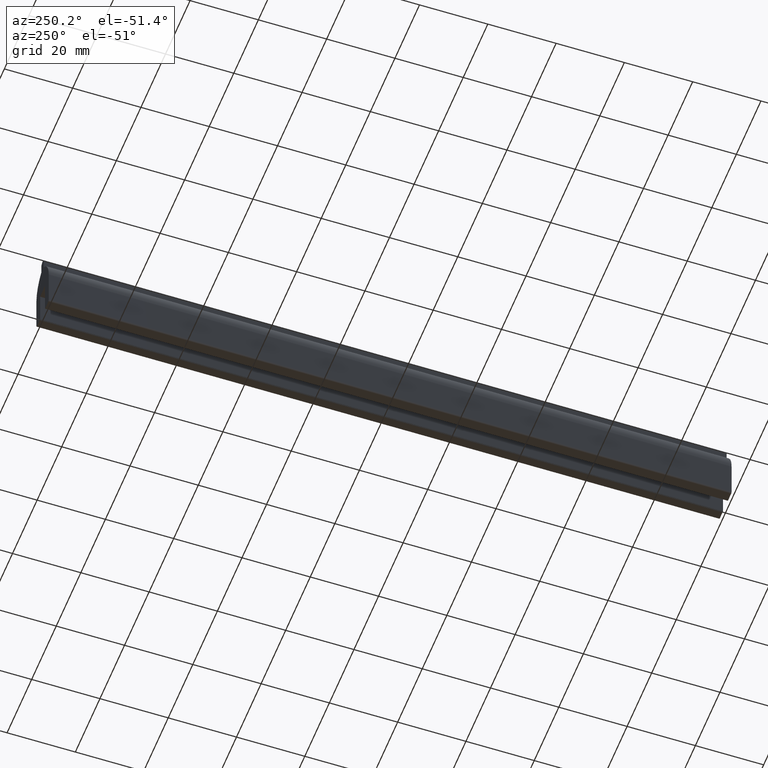
[diagram: clean part render]
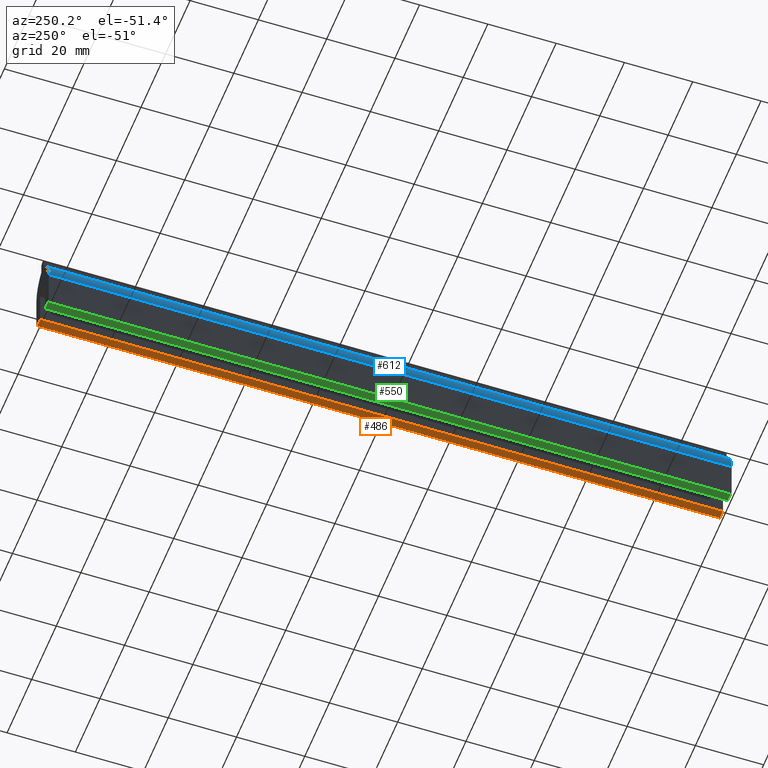
[diagram: same view with three faces highlighted in distinct colors, each labeled with its STEP entity id]
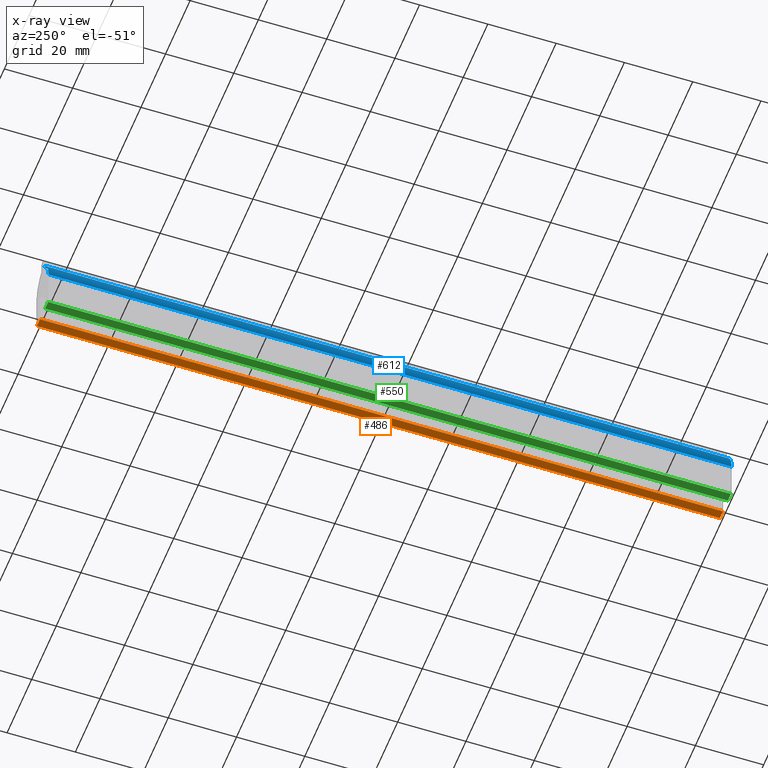
[diagram: x-ray of the same camera — body ghosted, the three highlighted faces saturated]
A machine part, auxiliary view with three faces highlighted in distinct colors.
The next image is the same camera in x-ray (body ghosted, the three faces saturated) — at least one of them is partly hidden behind the body in this view.
Their STEP definitions:

[orange] entity #486 — the highlighted face is a freeform B-spline surface patch.
#109=CARTESIAN_POINT('',(2.0,0.0,-23.0));
#110=VERTEX_POINT('',#109);
#116=CARTESIAN_POINT('',(4.500000000000000,0.0,-23.0));
#117=VERTEX_POINT('',#116);
#118=CARTESIAN_POINT('',(2.0,0.0,-23.0));
#119=CARTESIAN_POINT('',(4.500000000000000,0.0,-23.0));
#120=QUASI_UNIFORM_CURVE('',1,(#118,#119),.UNSPECIFIED.,.F.,.U.);
#121=EDGE_CURVE('',#110,#117,#120,.T.);
#267=CARTESIAN_POINT('',(4.500000000000000,200.0,-23.0));
#268=VERTEX_POINT('',#267);
#282=CARTESIAN_POINT('',(2.0,200.0,-23.0));
#283=VERTEX_POINT('',#282);
#284=CARTESIAN_POINT('',(2.0,200.0,-23.0));
#285=CARTESIAN_POINT('',(4.500000000000000,200.0,-23.0));
#286=QUASI_UNIFORM_CURVE('',1,(#284,#285),.UNSPECIFIED.,.F.,.U.);
#287=EDGE_CURVE('',#283,#268,#286,.T.);
#461=CARTESIAN_POINT('',(4.500000000000000,200.0,-23.0));
#462=CARTESIAN_POINT('',(4.500000000000000,0.0,-23.0));
#463=QUASI_UNIFORM_CURVE('',1,(#461,#462),.UNSPECIFIED.,.F.,.U.);
#464=EDGE_CURVE('',#268,#117,#463,.T.);
#471=CARTESIAN_POINT('',(4.624874995154515,-9.989999612361194,-23.0));
#472=CARTESIAN_POINT('',(1.875124937790260,-9.989999612361194,-23.0));
#473=CARTESIAN_POINT('',(4.624874995154515,209.990004976779200,-23.0));
#474=CARTESIAN_POINT('',(1.875124937790260,209.990004976779200,-23.0));
#475=B_SPLINE_SURFACE_WITH_KNOTS('',1,1,((#471,#473),(#472,#474)),.UNSPECIFIED.,.F.,.F.,.U.,(2,2),(2,2),(0.0,2.749750057364255),(0.0,219.980004589140410),.UNSPECIFIED.);
#476=ORIENTED_EDGE('',*,*,#121,.F.);
#477=CARTESIAN_POINT('',(2.0,200.0,-23.0));
#478=CARTESIAN_POINT('',(2.0,0.0,-23.0));
#479=QUASI_UNIFORM_CURVE('',1,(#477,#478),.UNSPECIFIED.,.F.,.U.);
#480=EDGE_CURVE('',#283,#110,#479,.T.);
#481=ORIENTED_EDGE('',*,*,#480,.F.);
#482=ORIENTED_EDGE('',*,*,#287,.T.);
#483=ORIENTED_EDGE('',*,*,#464,.T.);
#484=EDGE_LOOP('',(#476,#481,#482,#483));
#485=FACE_OUTER_BOUND('',#484,.T.);
#486=ADVANCED_FACE('',(#485),#475,.T.);

[blue] entity #612 — the highlighted face is a freeform B-spline surface patch.
#49=CARTESIAN_POINT('',(-0.999999999999989,0.0,-3.500000000000000));
#50=VERTEX_POINT('',#49);
#51=CARTESIAN_POINT('',(-5.0,0.0,-11.500000000000000));
#52=VERTEX_POINT('',#51);
#53=CARTESIAN_POINT('',(-0.999999999999992,0.0,-3.499999999999994));
#54=CARTESIAN_POINT('',(-5.0,0.0,-6.499999999999996));
#55=CARTESIAN_POINT('',(-5.0,0.0,-11.500000000000000));
#63=(BOUNDED_CURVE()B_SPLINE_CURVE(2,(#53,#54,#55),.UNSPECIFIED.,.F.,.U.)CURVE()GEOMETRIC_REPRESENTATION_ITEM()QUASI_UNIFORM_CURVE()RATIONAL_B_SPLINE_CURVE((1.0,0.894427190999916,1.0))REPRESENTATION_ITEM(''));
#64=EDGE_CURVE('',#50,#52,#63,.T.);
#197=CARTESIAN_POINT('',(-0.999999999999989,200.0,-3.500000000000000));
#198=VERTEX_POINT('',#197);
#199=CARTESIAN_POINT('',(-5.0,200.0,-11.500000000000000));
#200=VERTEX_POINT('',#199);
#201=CARTESIAN_POINT('',(-0.999999999999992,200.0,-3.499999999999994));
#202=CARTESIAN_POINT('',(-5.0,200.0,-6.499999999999996));
#203=CARTESIAN_POINT('',(-5.0,200.0,-11.500000000000000));
#211=(BOUNDED_CURVE()B_SPLINE_CURVE(2,(#201,#202,#203),.UNSPECIFIED.,.F.,.U.)CURVE()GEOMETRIC_REPRESENTATION_ITEM()QUASI_UNIFORM_CURVE()RATIONAL_B_SPLINE_CURVE((1.0,0.894427190999916,1.0))REPRESENTATION_ITEM(''));
#212=EDGE_CURVE('',#198,#200,#211,.T.);
#352=CARTESIAN_POINT('',(-0.999999999999989,200.0,-3.500000000000000));
#353=CARTESIAN_POINT('',(-0.999999999999989,0.0,-3.500000000000000));
#354=QUASI_UNIFORM_CURVE('',1,(#352,#353),.UNSPECIFIED.,.F.,.U.);
#355=EDGE_CURVE('',#198,#50,#354,.T.);
#582=CARTESIAN_POINT('',(-5.0,200.0,-11.500000000000000));
#583=CARTESIAN_POINT('',(-5.0,0.0,-11.500000000000000));
#584=QUASI_UNIFORM_CURVE('',1,(#582,#583),.UNSPECIFIED.,.F.,.U.);
#585=EDGE_CURVE('',#200,#52,#584,.T.);
#592=CARTESIAN_POINT('',(-4.991446930525118,205.0,-11.913507236333430));
#593=CARTESIAN_POINT('',(-4.991446930525118,-5.125000000000000,-11.913507236333430));
#594=CARTESIAN_POINT('',(-5.220929670469757,205.0,-6.368587060427442));
#595=CARTESIAN_POINT('',(-5.220929670469757,-5.125000000000001,-6.368587060427442));
#596=CARTESIAN_POINT('',(-0.637029030316939,205.000000000000030,-3.240223749315967));
#597=CARTESIAN_POINT('',(-0.637029030316939,-5.125000000000000,-3.240223749315967));
#605=(BOUNDED_SURFACE()B_SPLINE_SURFACE(1,2,((#592,#594,#596),(#593,#595,#597)),.UNSPECIFIED.,.F.,.F.,.U.)B_SPLINE_SURFACE_WITH_KNOTS((2,2),(3,3),(0.0,210.125000000000000),(0.0,10.355382064580500),.UNSPECIFIED.)GEOMETRIC_REPRESENTATION_ITEM()RATIONAL_B_SPLINE_SURFACE(((1.0,0.870547137844800,0.991261755100546),(1.0,0.870547137844800,0.991261755100546)))REPRESENTATION_ITEM('')SURFACE());
#606=ORIENTED_EDGE('',*,*,#64,.F.);
#607=ORIENTED_EDGE('',*,*,#355,.F.);
#608=ORIENTED_EDGE('',*,*,#212,.T.);
#609=ORIENTED_EDGE('',*,*,#585,.T.);
#610=EDGE_LOOP('',(#606,#607,#608,#609));
#611=FACE_OUTER_BOUND('',#610,.T.);
#612=ADVANCED_FACE('',(#611),#605,.T.);

[green] entity #550 — the highlighted face is a freeform B-spline surface patch.
#73=CARTESIAN_POINT('',(-4.500000000000000,0.0,-23.0));
#74=VERTEX_POINT('',#73);
#88=CARTESIAN_POINT('',(-2.0,0.0,-23.0));
#89=VERTEX_POINT('',#88);
#90=CARTESIAN_POINT('',(-4.500000000000000,0.0,-23.0));
#91=CARTESIAN_POINT('',(-2.0,0.0,-23.0));
#92=QUASI_UNIFORM_CURVE('',1,(#90,#91),.UNSPECIFIED.,.F.,.U.);
#93=EDGE_CURVE('',#74,#89,#92,.T.);
#303=CARTESIAN_POINT('',(-2.0,200.0,-23.0));
#304=VERTEX_POINT('',#303);
#310=CARTESIAN_POINT('',(-4.500000000000000,200.0,-23.0));
#311=VERTEX_POINT('',#310);
#312=CARTESIAN_POINT('',(-4.500000000000000,200.0,-23.0));
#313=CARTESIAN_POINT('',(-2.0,200.0,-23.0));
#314=QUASI_UNIFORM_CURVE('',1,(#312,#313),.UNSPECIFIED.,.F.,.U.);
#315=EDGE_CURVE('',#311,#304,#314,.T.);
#525=CARTESIAN_POINT('',(-2.0,200.0,-23.0));
#526=CARTESIAN_POINT('',(-2.0,0.0,-23.0));
#527=QUASI_UNIFORM_CURVE('',1,(#525,#526),.UNSPECIFIED.,.F.,.U.);
#528=EDGE_CURVE('',#304,#89,#527,.T.);
#535=CARTESIAN_POINT('',(-1.875125004845485,-9.989999612361171,-23.0));
#536=CARTESIAN_POINT('',(-4.624875062209740,-9.989999612361171,-23.0));
#537=CARTESIAN_POINT('',(-1.875125004845485,209.990004976779200,-23.0));
#538=CARTESIAN_POINT('',(-4.624875062209740,209.990004976779200,-23.0));
#539=B_SPLINE_SURFACE_WITH_KNOTS('',1,1,((#535,#537),(#536,#538)),.UNSPECIFIED.,.F.,.F.,.U.,(2,2),(2,2),(0.0,2.749750057364255),(0.0,219.980004589140410),.UNSPECIFIED.);
#540=ORIENTED_EDGE('',*,*,#93,.F.);
#541=CARTESIAN_POINT('',(-4.500000000000000,200.0,-23.0));
#542=CARTESIAN_POINT('',(-4.500000000000000,0.0,-23.0));
#543=QUASI_UNIFORM_CURVE('',1,(#541,#542),.UNSPECIFIED.,.F.,.U.);
#544=EDGE_CURVE('',#311,#74,#543,.T.);
#545=ORIENTED_EDGE('',*,*,#544,.F.);
#546=ORIENTED_EDGE('',*,*,#315,.T.);
#547=ORIENTED_EDGE('',*,*,#528,.T.);
#548=EDGE_LOOP('',(#540,#545,#546,#547));
#549=FACE_OUTER_BOUND('',#548,.T.);
#550=ADVANCED_FACE('',(#549),#539,.T.);